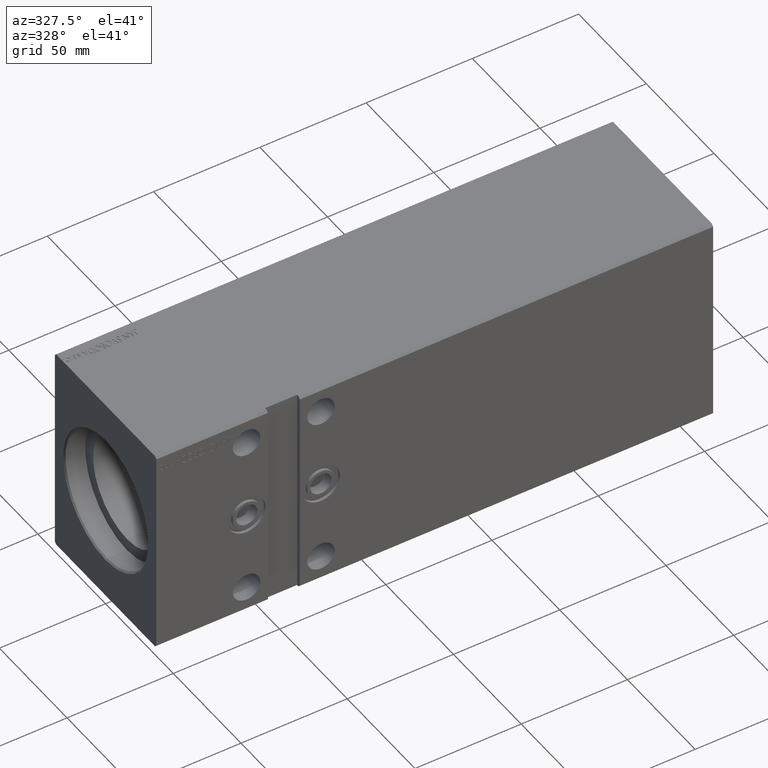
[diagram: clean part render]
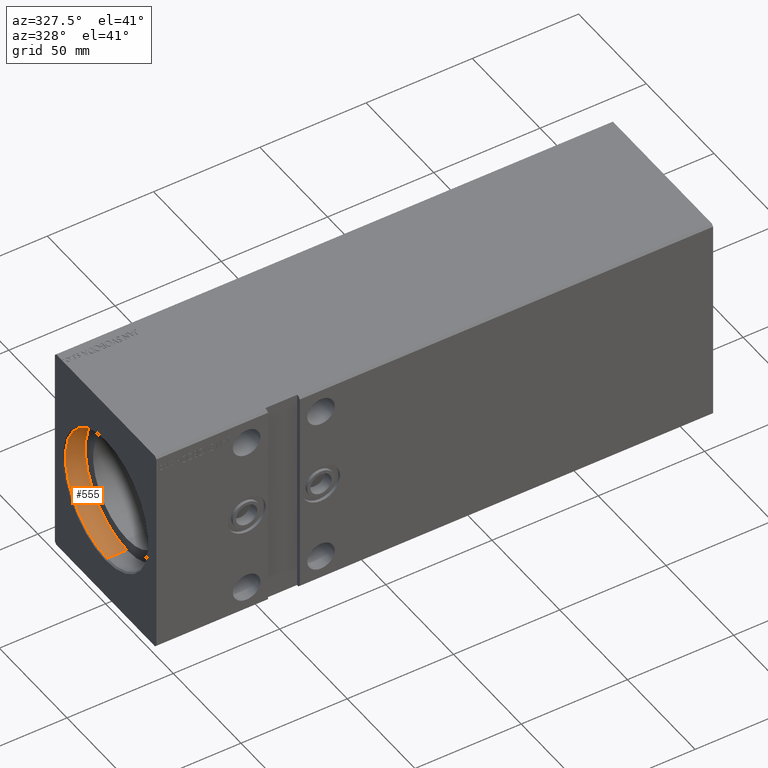
[diagram: same view with one face highlighted and labeled with its STEP entity id]
A machine part, auxiliary view. The second image highlights one B-rep face of the part: STEP entity #555.
In plain terms, the highlighted cylindrical surface (partial cylindrical patch) has radius 30.75 mm, axis along (-1, -0, -0).
Its self-contained STEP definition (entity closure, byte-faithful):
#337 = CARTESIAN_POINT ( 'NONE',  ( 10.00000000000000000, 0.000000000000000000, 0.000000000000000000 ) ) ;
#555 = ADVANCED_FACE ( 'NONE', ( #36648 ), #29854, .F. ) ;
#3320 = AXIS2_PLACEMENT_3D ( 'NONE', #337, #3521, #13301 ) ;
#3521 = DIRECTION ( 'NONE',  ( -1.000000000000000000, -0.000000000000000000, -0.000000000000000000 ) ) ;
#4279 = EDGE_CURVE ( 'NONE', #10553, #12435, #26174, .T. ) ;
#6062 = CARTESIAN_POINT ( 'NONE',  ( 10.00000000000000000, 3.765788907378111328E-15, -30.75000000000000355 ) ) ;
#7040 = CIRCLE ( 'NONE', #35502, 30.75000000000000355 ) ;
#7109 = CARTESIAN_POINT ( 'NONE',  ( 10.00000000000000000, 0.000000000000000000, 0.000000000000000000 ) ) ;
#10553 = VERTEX_POINT ( 'NONE', #36429 ) ;
#10754 = ORIENTED_EDGE ( 'NONE', *, *, #30368, .F. ) ;
#11882 = AXIS2_PLACEMENT_3D ( 'NONE', #38643, #32054, #31843 ) ;
#12435 = VERTEX_POINT ( 'NONE', #34701 ) ;
#13301 = DIRECTION ( 'NONE',  ( 0.000000000000000000, 0.000000000000000000, 1.000000000000000000 ) ) ;
#14294 = EDGE_CURVE ( 'NONE', #10553, #16656, #7040, .T. ) ;
#14551 = CARTESIAN_POINT ( 'NONE',  ( 10.00000000000000000, 3.765788907378111328E-15, -30.75000000000000355 ) ) ;
#16140 = EDGE_LOOP ( 'NONE', ( #10754, #34169, #22257, #34930 ) ) ;
#16656 = VERTEX_POINT ( 'NONE', #6062 ) ;
#16841 = DIRECTION ( 'NONE',  ( -1.000000000000000000, -0.000000000000000000, -0.000000000000000000 ) ) ;
#17326 = DIRECTION ( 'NONE',  ( -1.000000000000000000, -0.000000000000000000, -0.000000000000000000 ) ) ;
#17739 = LINE ( 'NONE', #14551, #32276 ) ;
#20065 = DIRECTION ( 'NONE',  ( 0.000000000000000000, 0.000000000000000000, 1.000000000000000000 ) ) ;
#22257 = ORIENTED_EDGE ( 'NONE', *, *, #4279, .T. ) ;
#22314 = VERTEX_POINT ( 'NONE', #24437 ) ;
#22989 = CARTESIAN_POINT ( 'NONE',  ( 10.00000000000000000, 0.000000000000000000, 30.75000000000000355 ) ) ;
#24437 = CARTESIAN_POINT ( 'NONE',  ( 0.6999999999999957367, 3.765788907378111328E-15, -30.75000000000000355 ) ) ;
#26174 = LINE ( 'NONE', #22989, #27811 ) ;
#27811 = VECTOR ( 'NONE', #16841, 1000.000000000000000 ) ;
#29854 = CYLINDRICAL_SURFACE ( 'NONE', #3320, 30.75000000000000355 ) ;
#30368 = EDGE_CURVE ( 'NONE', #16656, #22314, #17739, .T. ) ;
#31068 = EDGE_CURVE ( 'NONE', #12435, #22314, #36978, .T. ) ;
#31843 = DIRECTION ( 'NONE',  ( 0.000000000000000000, 0.000000000000000000, -1.000000000000000000 ) ) ;
#32054 = DIRECTION ( 'NONE',  ( -1.000000000000000000, 0.000000000000000000, 0.000000000000000000 ) ) ;
#32276 = VECTOR ( 'NONE', #17326, 1000.000000000000000 ) ;
#32796 = DIRECTION ( 'NONE',  ( -1.000000000000000000, 0.000000000000000000, 0.000000000000000000 ) ) ;
#34169 = ORIENTED_EDGE ( 'NONE', *, *, #14294, .F. ) ;
#34701 = CARTESIAN_POINT ( 'NONE',  ( 0.6999999999999957367, 0.000000000000000000, 30.75000000000000355 ) ) ;
#34930 = ORIENTED_EDGE ( 'NONE', *, *, #31068, .T. ) ;
#35502 = AXIS2_PLACEMENT_3D ( 'NONE', #7109, #32796, #20065 ) ;
#36429 = CARTESIAN_POINT ( 'NONE',  ( 10.00000000000000000, 0.000000000000000000, 30.75000000000000355 ) ) ;
#36648 = FACE_OUTER_BOUND ( 'NONE', #16140, .T. ) ;
#36978 = CIRCLE ( 'NONE', #11882, 30.75000000000000355 ) ;
#38643 = CARTESIAN_POINT ( 'NONE',  ( 0.6999999999999957367, 0.000000000000000000, 0.000000000000000000 ) ) ;